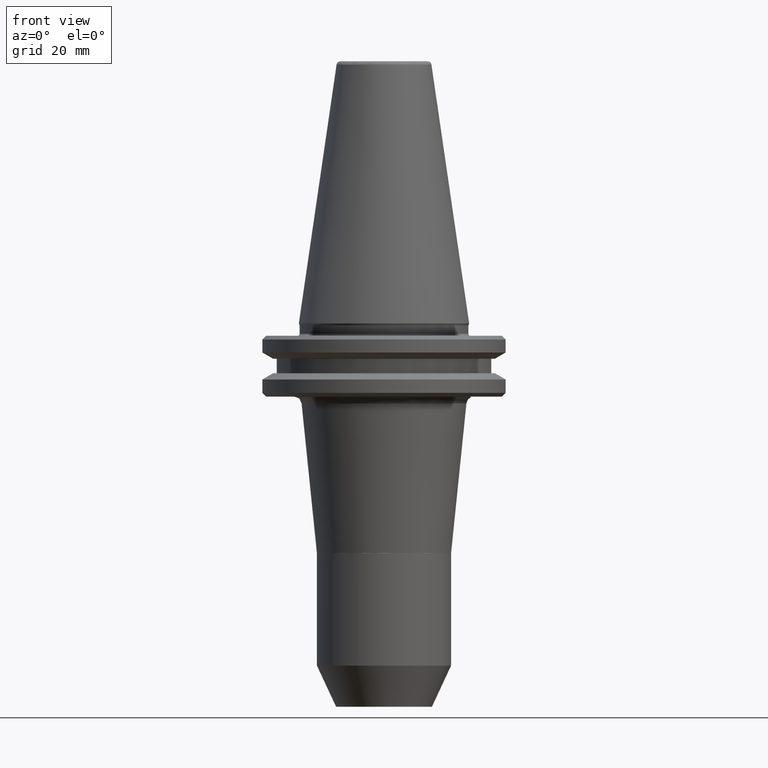
[diagram: clean part render]
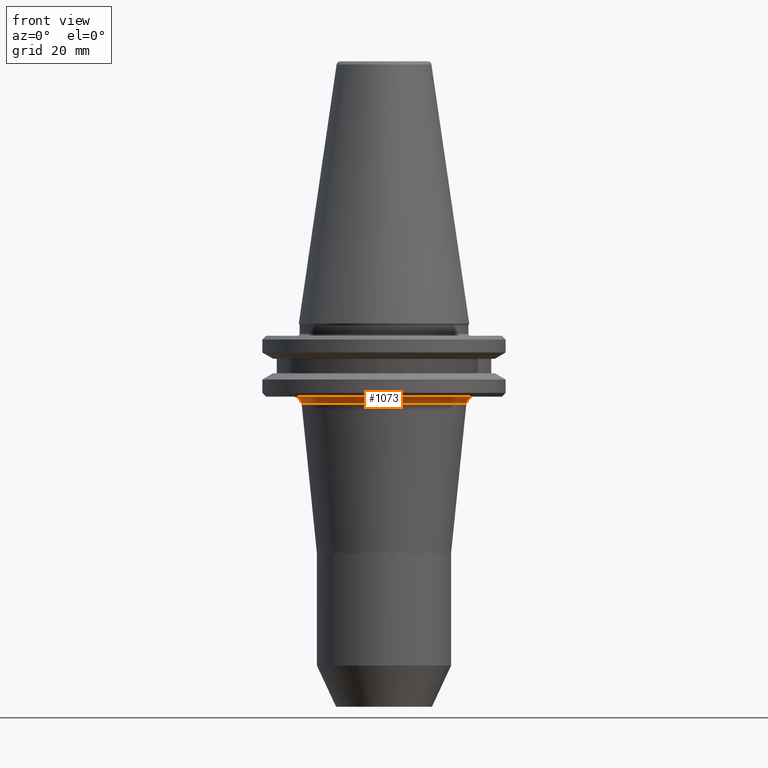
[diagram: same view with one face highlighted and labeled with its STEP entity id]
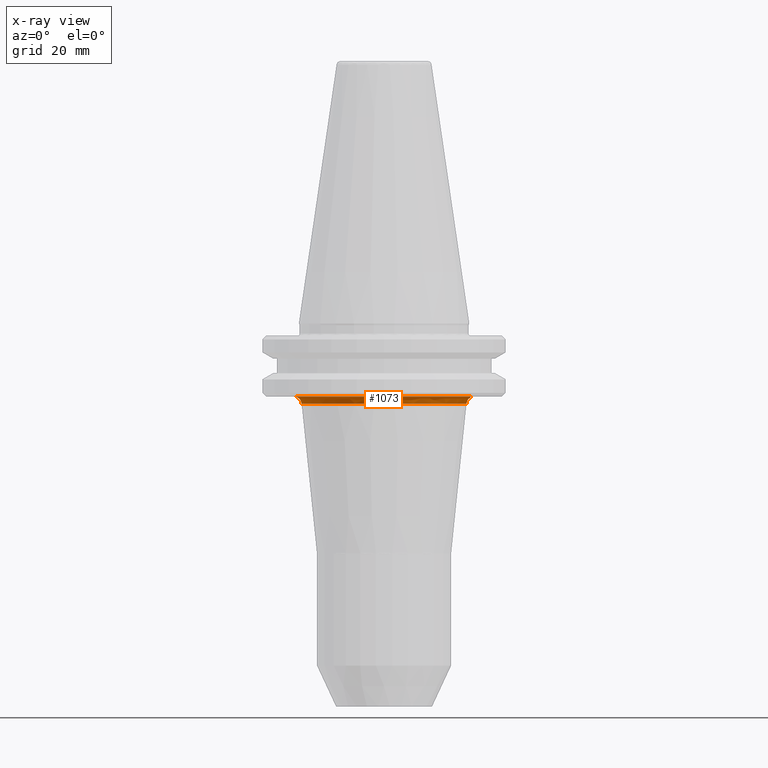
[diagram: x-ray of the same camera — body ghosted, the highlighted face saturated]
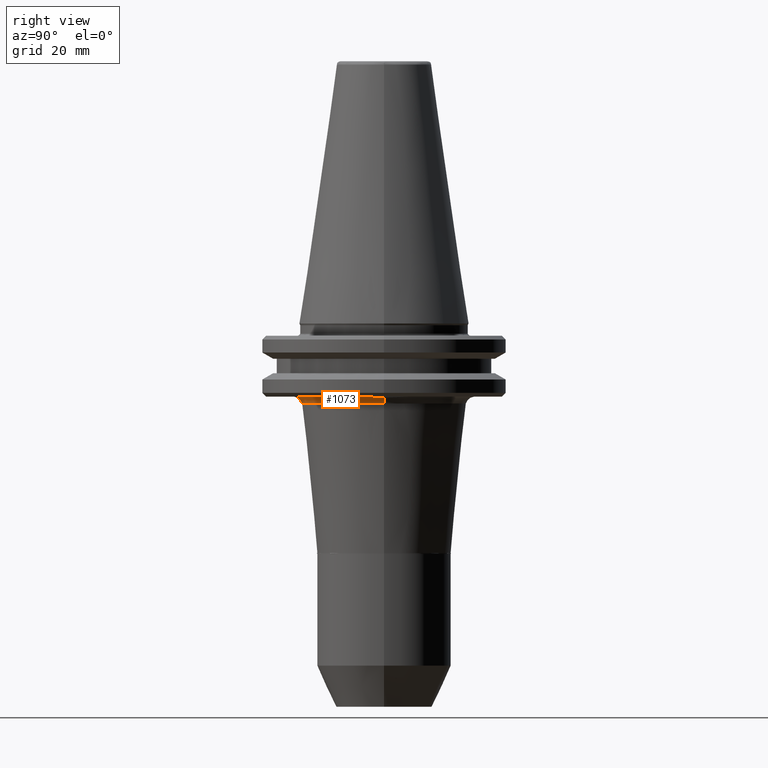
[diagram: same view with one face highlighted and labeled with its STEP entity id]
A machine part, front view. The second image highlights one B-rep face of the part: STEP entity #1073.
The next image is the same camera in x-ray: the body ghosted, the highlighted face saturated — about 0% of this face is hidden behind the body in this view.
A second angle (right view) of the same face is appended — the face is thin or edge-on in the first view.
In plain terms, the highlighted face is a freeform B-spline surface patch.
Its self-contained STEP definition (entity closure, byte-faithful):
#13 = B_SPLINE_CURVE_WITH_KNOTS ( 'NONE', 3,
 ( #38, #1048, #1047, #1046, #1044, #1043, #1042, #1041, #1040, #1038, #1036, #1035, #1034, #1033, #1031, #1027, #1026, #1025, #1022, #1020, #1018, #1016, #1015, #1013, #1012, #1011, #1005, #1004, #1000, #997, #996, #995, #993, #990, #988, #987, #982, #981, #979, #974, #971, #970, #969, #965, #964, #963, #959, #958, #955, #954, #953, #951, #948, #947, #945, #943, #940, #939, #938, #936, #935, #933, #931, #926, #924, #923, #922, #920, #919, #917, #914, #912, #909, #908, #906, #905, #902, #901, #900, #898, #897, #895, #894, #892, #891, #888, #886, #884, #883, #882, #881, #878, #877, #875, #874, #870, #868, #867, #866, #865, #863, #861 ),
 .UNSPECIFIED., .F., .F.,
 ( 4, 1, 1, 1, 1, 2, 2, 1, 1, 1, 1, 2, 2, 1, 1, 1, 2, 2, 2, 1, 1, 1, 2, 2, 1, 1, 1, 1, 2, 2, 1, 1, 1, 1, 2, 2, 2, 1, 1, 1, 1, 2, 2, 1, 1, 1, 1, 2, 2, 1, 1, 1, 2, 2, 2, 1, 1, 1, 2, 2, 1, 1, 1, 1, 2, 2, 1, 1, 1, 1, 2, 2, 4 ),
 ( 0.0000000000000000000, 0.03124999999999959800, 0.04687499999999941000, 0.05468749999999931300, 0.05859374999999927100, 0.06054687499999925100, 0.06249999999999922300, 0.09374999999999884800, 0.1093749999999986300, 0.1171874999999985300, 0.1210937499999985000, 0.1230468749999984600, 0.1249999999999984200, 0.1562499999999982000, 0.1718749999999980800, 0.1796874999999980800, 0.1835937499999980600, 0.1874999999999980300, 0.2499999999999987200, 0.2812499999999990000, 0.2968749999999990600, 0.3046874999999990600, 0.3085937499999991100, 0.3124999999999991700, 0.3437499999999991100, 0.3593749999999991100, 0.3671874999999991100, 0.3710937499999991100, 0.3730468749999991100, 0.3749999999999991700, 0.4062499999999991100, 0.4218749999999991100, 0.4296874999999991100, 0.4335937499999991100, 0.4355468749999991700, 0.4374999999999991700, 0.4999999999999992200, 0.5312499999999992200, 0.5468749999999993300, 0.5546874999999993300, 0.5585937499999992200, 0.5605468749999992200, 0.5624999999999992200, 0.5937499999999992200, 0.6093749999999992200, 0.6171874999999992200, 0.6210937499999993300, 0.6230468749999993300, 0.6249999999999992200, 0.6562499999999993300, 0.6718749999999993300, 0.6796874999999993300, 0.6835937499999993300, 0.6874999999999992200, 0.7499999999999992200, 0.7812499999999991100, 0.7968749999999992200, 0.8046874999999992200, 0.8085937499999991100, 0.8124999999999991100, 0.8437499999999984500, 0.8593749999999982200, 0.8671874999999981100, 0.8710937499999981100, 0.8730468749999981100, 0.8749999999999980000, 0.9062499999999982200, 0.9218749999999982200, 0.9296874999999982200, 0.9335937499999982200, 0.9355468749999981100, 0.9374999999999981100, 1.000000000000000000 ),
 .UNSPECIFIED. ) ;
#18 = DIRECTION ( 'NONE',  ( -1.224646799147353200E-016, -1.000000000000000000, 0.0000000000000000000 ) ) ;
#27 = CIRCLE ( 'NONE', #1374, 21.50000000000000000 ) ;
#38 = CARTESIAN_POINT ( 'NONE',  ( -23.48961763778060400, 2.876648505330322700E-015, -19.10000000000000500 ) ) ;
#74 = CARTESIAN_POINT ( 'NONE',  ( -23.48961763778060400, 2.876648505330322700E-015, -19.10000000000000500 ) ) ;
#83 = CIRCLE ( 'NONE', #370, 2.000000000000001800 ) ;
#111 = DIRECTION ( 'NONE',  ( -0.0000000000000000000, -0.0000000000000000000, -1.000000000000000000 ) ) ;
#173 = CARTESIAN_POINT ( 'NONE',  ( 22.60000000000000100, 0.0000000000000000000, -19.30874891247775000 ) ) ;
#190 = CARTESIAN_POINT ( 'NONE',  ( 23.48961763778060400, 0.0000000000000000000, -21.10000000000000900 ) ) ;
#191 = CARTESIAN_POINT ( 'NONE',  ( -21.60979898546045400, 2.646437115776186900E-015, -19.82309510084861200 ) ) ;
#200 = VERTEX_POINT ( 'NONE', #776 ) ;
#213 = ORIENTED_EDGE ( 'NONE', *, *, #409, .T. ) ;
#258 = VERTEX_POINT ( 'NONE', #173 ) ;
#272 = CARTESIAN_POINT ( 'NONE',  ( 21.50000000000000000, -5.265981236333617700E-015, -20.89647689214163500 ) ) ;
#348 = FACE_OUTER_BOUND ( 'NONE', #398, .T. ) ;
#362 = CARTESIAN_POINT ( 'NONE',  ( -23.48961763778060400, 2.876648505330322700E-015, -21.10000000000000900 ) ) ;
#370 = AXIS2_PLACEMENT_3D ( 'NONE', #362, #18, #1176 ) ;
#389 = DIRECTION ( 'NONE',  ( 1.000000000000000000, 0.0000000000000000000, 0.0000000000000000000 ) ) ;
#398 = EDGE_LOOP ( 'NONE', ( #1528, #1183, #213, #774, #537 ) ) ;
#401 = CARTESIAN_POINT ( 'NONE',  ( 22.60000000000000100, -6.403291088895889200, -19.10000000000006200 ) ) ;
#404 = B_SPLINE_CURVE_WITH_KNOTS ( 'NONE', 3,
 ( #1135, #1137, #1128, #1126, #1125, #1120 ),
 .UNSPECIFIED., .F., .F.,
 ( 4, 2, 4 ),
 ( 0.0000000000000000000, 0.003203409422254073200, 0.006406818844508146500 ),
 .UNSPECIFIED. ) ;
#409 = EDGE_CURVE ( 'NONE', #853, #258, #658, .T. ) ;
#425 = VERTEX_POINT ( 'NONE', #74 ) ;
#537 = ORIENTED_EDGE ( 'NONE', *, *, #1218, .F. ) ;
#567 = EDGE_CURVE ( 'NONE', #853, #200, #27, .T. ) ;
#584 =( BOUNDED_SURFACE ( )  B_SPLINE_SURFACE ( 3, 3, ( 
 ( #1223, #1216, #1197, #272 ),
 ( #191, #1127, #1196, #1195 ),
 ( #1193, #1192, #1190, #1188 ),
 ( #1187, #1185, #1184, #1181 ) ),
 .UNSPECIFIED., .F., .F., .F. ) 
 B_SPLINE_SURFACE_WITH_KNOTS ( ( 4, 4 ),
 ( 4, 4 ),
 ( 0.0000000000000000000, 1.000000000000000000 ),
 ( 0.0000000000000000000, 1.000000000000000000 ),
 .UNSPECIFIED. ) 
 GEOMETRIC_REPRESENTATION_ITEM ( )  RATIONAL_B_SPLINE_SURFACE ( (
 ( 1.000000000000000000, 0.3333333333333334300, 0.3333333333333334300, 1.000000000000000000),
 ( 0.8281422872470154400, 0.2760474290823385400, 0.2760474290823385400, 0.8281422872470154400),
 ( 0.8281422872470154400, 0.2760474290823385400, 0.2760474290823385400, 0.8281422872470154400),
 ( 1.000000000000000000, 0.3333333333333334300, 0.3333333333333334300, 1.000000000000000000) ) ) 
 REPRESENTATION_ITEM ( '' )  SURFACE ( )  );
#658 = CIRCLE ( 'NONE', #831, 2.000000000000001800 ) ;
#668 = EDGE_CURVE ( 'NONE', #200, #425, #83, .T. ) ;
#774 = ORIENTED_EDGE ( 'NONE', *, *, #1122, .T. ) ;
#776 = CARTESIAN_POINT ( 'NONE',  ( -21.50000000000000000, 2.632990618166809200E-015, -20.89647689214163500 ) ) ;
#808 = DIRECTION ( 'NONE',  ( 1.000000000000000000, 0.0000000000000000000, 0.0000000000000000000 ) ) ;
#831 = AXIS2_PLACEMENT_3D ( 'NONE', #190, #1362, #389 ) ;
#853 = VERTEX_POINT ( 'NONE', #1324 ) ;
#861 = CARTESIAN_POINT ( 'NONE',  ( 22.60000000000000100, -6.403291088895889200, -19.10000000000006200 ) ) ;
#863 = CARTESIAN_POINT ( 'NONE',  ( 22.23844916011287200, -7.679361295296256000, -19.09999999999999800 ) ) ;
#865 = CARTESIAN_POINT ( 'NONE',  ( 21.77224074249654300, -8.915783867585053800, -19.10000000000000100 ) ) ;
#866 = CARTESIAN_POINT ( 'NONE',  ( 21.18353518479646200, -10.14995802258036600, -19.10000000000000900 ) ) ;
#867 = CARTESIAN_POINT ( 'NONE',  ( 21.16379654811799700, -10.19105996906064800, -19.09999999999999800 ) ) ;
#868 = CARTESIAN_POINT ( 'NONE',  ( 21.12590786752472000, -10.26937644846092300, -19.10000000000000500 ) ) ;
#870 = CARTESIAN_POINT ( 'NONE',  ( 21.06876436507452900, -10.38666648366328400, -19.10000000000000900 ) ) ;
#874 = CARTESIAN_POINT ( 'NONE',  ( 20.93325615510221000, -10.65905044518241800, -19.10000000000000100 ) ) ;
#875 = CARTESIAN_POINT ( 'NONE',  ( 20.65354625147004700, -11.19864721907524600, -19.10000000000001200 ) ) ;
#877 = CARTESIAN_POINT ( 'NONE',  ( 20.05935250945554300, -12.25715617027905300, -19.10000000000000100 ) ) ;
#878 = CARTESIAN_POINT ( 'NONE',  ( 19.49043112815716200, -13.12899024859922300, -19.10000000000000900 ) ) ;
#881 = CARTESIAN_POINT ( 'NONE',  ( 19.05929482160640000, -13.72979471398595800, -19.10000000000000900 ) ) ;
#882 = CARTESIAN_POINT ( 'NONE',  ( 19.03206440342815100, -13.76752134902931400, -19.10000000000001200 ) ) ;
#883 = CARTESIAN_POINT ( 'NONE',  ( 18.97918167678805200, -13.84033553528916400, -19.10000000000000100 ) ) ;
#884 = CARTESIAN_POINT ( 'NONE',  ( 18.89956623757489900, -13.94930292675507400, -19.10000000000000500 ) ) ;
#886 = CARTESIAN_POINT ( 'NONE',  ( 18.71175743463993900, -14.20178295804162600, -19.10000000000000100 ) ) ;
#888 = CARTESIAN_POINT ( 'NONE',  ( 18.32798204968619500, -14.69963415874589300, -19.10000000000000500 ) ) ;
#891 = CARTESIAN_POINT ( 'NONE',  ( 17.52780016344347300, -15.66690111267899800, -19.10000000000000500 ) ) ;
#892 = CARTESIAN_POINT ( 'NONE',  ( 16.78599091866069800, -16.44724059180669000, -19.10000000000000500 ) ) ;
#894 = CARTESIAN_POINT ( 'NONE',  ( 16.20166445678625400, -17.00812196045926000, -19.10000000000000500 ) ) ;
#895 = CARTESIAN_POINT ( 'NONE',  ( 16.13407094556841800, -17.07226742622473700, -19.10000000000000900 ) ) ;
#897 = CARTESIAN_POINT ( 'NONE',  ( 16.00055967471819300, -17.19747789843038500, -19.09999999999999800 ) ) ;
#898 = CARTESIAN_POINT ( 'NONE',  ( 15.79930017124098500, -17.38403846110652400, -19.10000000000000500 ) ) ;
#900 = CARTESIAN_POINT ( 'NONE',  ( 15.32274648271427300, -17.81056042125786800, -19.10000000000000500 ) ) ;
#901 = CARTESIAN_POINT ( 'NONE',  ( 14.34184638400802700, -18.62846026385526300, -19.10000000000000900 ) ) ;
#902 = CARTESIAN_POINT ( 'NONE',  ( 13.45343020514065000, -19.26927028144395800, -19.10000000000001200 ) ) ;
#905 = CARTESIAN_POINT ( 'NONE',  ( 11.61307162648512100, -20.47056099615210200, -19.10000000000000100 ) ) ;
#906 = CARTESIAN_POINT ( 'NONE',  ( 10.32166076410919900, -21.15120870298842000, -19.10000000000000900 ) ) ;
#908 = CARTESIAN_POINT ( 'NONE',  ( 8.882828095368390500, -21.74547754313000100, -19.10000000000000500 ) ) ;
#909 = CARTESIAN_POINT ( 'NONE',  ( 8.800874475552289400, -21.77877113794940600, -19.10000000000000500 ) ) ;
#912 = CARTESIAN_POINT ( 'NONE',  ( 8.633830778128835700, -21.84554372629682500, -19.10000000000000900 ) ) ;
#914 = CARTESIAN_POINT ( 'NONE',  ( 8.382812370194571400, -21.94422461174937700, -19.10000000000000500 ) ) ;
#917 = CARTESIAN_POINT ( 'NONE',  ( 7.793932719087764300, -22.16413403165881800, -19.10000000000000900 ) ) ;
#919 = CARTESIAN_POINT ( 'NONE',  ( 6.603493286500011500, -22.56256895355817700, -19.10000000000000500 ) ) ;
#920 = CARTESIAN_POINT ( 'NONE',  ( 5.561379263640556100, -22.83314074160991700, -19.10000000000001200 ) ) ;
#922 = CARTESIAN_POINT ( 'NONE',  ( 4.812950296669378700, -22.99129449125934200, -19.10000000000000500 ) ) ;
#923 = CARTESIAN_POINT ( 'NONE',  ( 4.771799317805768900, -22.99986771999664700, -19.10000000000000900 ) ) ;
#924 = CARTESIAN_POINT ( 'NONE',  ( 4.686581034418255200, -23.01738531499732300, -19.10000000000000100 ) ) ;
#926 = CARTESIAN_POINT ( 'NONE',  ( 4.558711538164329700, -23.04330291201765100, -19.09999999999999800 ) ) ;
#931 = CARTESIAN_POINT ( 'NONE',  ( 4.260054882029924000, -23.10126573670021700, -19.10000000000000500 ) ) ;
#933 = CARTESIAN_POINT ( 'NONE',  ( 3.661563576926753200, -23.20714511260579000, -19.10000000000000500 ) ) ;
#935 = CARTESIAN_POINT ( 'NONE',  ( 2.459868995383026400, -23.37871877057880700, -19.10000000000000500 ) ) ;
#936 = CARTESIAN_POINT ( 'NONE',  ( 1.421767403195733000, -23.45689317369032200, -19.10000000000000900 ) ) ;
#938 = CARTESIAN_POINT ( 'NONE',  ( 0.6826309890756546700, -23.47973591897771700, -19.10000000000000500 ) ) ;
#939 = CARTESIAN_POINT ( 'NONE',  ( 0.6432506236463525500, -23.48084404284937700, -19.10000000000000100 ) ) ;
#940 = CARTESIAN_POINT ( 'NONE',  ( 0.5604102215570071500, -23.48296854702307000, -19.10000000000000900 ) ) ;
#943 = CARTESIAN_POINT ( 'NONE',  ( 0.4361681943582441100, -23.48582799268633900, -19.10000000000000500 ) ) ;
#945 = CARTESIAN_POINT ( 'NONE',  ( 0.1464001624412454000, -23.49020885838670500, -19.10000000000000900 ) ) ;
#947 = CARTESIAN_POINT ( 'NONE',  ( -0.4326157752056038500, -23.48980589306484700, -19.10000000000000100 ) ) ;
#948 = CARTESIAN_POINT ( 'NONE',  ( -1.588567145750734700, -23.45234117553087200, -19.10000000000000500 ) ) ;
#951 = CARTESIAN_POINT ( 'NONE',  ( -2.575816026649015100, -23.35738492583269000, -19.10000000000000500 ) ) ;
#953 = CARTESIAN_POINT ( 'NONE',  ( -4.545558349020268500, -23.08368091354422100, -19.10000000000000900 ) ) ;
#954 = CARTESIAN_POINT ( 'NONE',  ( -5.835063688993908900, -22.79195538834501600, -19.10000000000000900 ) ) ;
#955 = CARTESIAN_POINT ( 'NONE',  ( -7.138333864131088700, -22.37873991038258100, -19.10000000000000500 ) ) ;
#958 = CARTESIAN_POINT ( 'NONE',  ( -7.181766295459447700, -22.36484340433722200, -19.10000000000000500 ) ) ;
#959 = CARTESIAN_POINT ( 'NONE',  ( -7.264551560723817600, -22.33809227505639700, -19.10000000000000500 ) ) ;
#963 = CARTESIAN_POINT ( 'NONE',  ( -7.388589256946167100, -22.29763263905008900, -19.10000000000000500 ) ) ;
#964 = CARTESIAN_POINT ( 'NONE',  ( -7.677029136412208700, -22.20089622710650100, -19.10000000000000900 ) ) ;
#965 = CARTESIAN_POINT ( 'NONE',  ( -8.249983248466533000, -21.99810102483709800, -19.10000000000000500 ) ) ;
#969 = CARTESIAN_POINT ( 'NONE',  ( -9.380188885064159300, -21.55522110676950800, -19.10000000000000900 ) ) ;
#970 = CARTESIAN_POINT ( 'NONE',  ( -10.32201785212890700, -21.11168486809075500, -19.10000000000000100 ) ) ;
#971 = CARTESIAN_POINT ( 'NONE',  ( -10.97643508533846200, -20.76732661664618000, -19.10000000000000500 ) ) ;
#974 = CARTESIAN_POINT ( 'NONE',  ( -11.01754997664923900, -20.74554680080168700, -19.10000000000000500 ) ) ;
#977 = CARTESIAN_POINT ( 'NONE',  ( 0.0000000000000000000, 0.0000000000000000000, -20.89647689214163500 ) ) ;
#979 = CARTESIAN_POINT ( 'NONE',  ( -11.09694861920547000, -20.70318710229494700, -19.10000000000000500 ) ) ;
#981 = CARTESIAN_POINT ( 'NONE',  ( -11.21583520292001500, -20.63932403960466300, -19.10000000000000900 ) ) ;
#982 = CARTESIAN_POINT ( 'NONE',  ( -11.49175757074860500, -20.48804562214923700, -19.10000000000000500 ) ) ;
#987 = CARTESIAN_POINT ( 'NONE',  ( -12.03768366305111000, -20.17643036919283300, -19.10000000000000500 ) ) ;
#988 = CARTESIAN_POINT ( 'NONE',  ( -13.10586127423742300, -19.51696619109769100, -19.10000000000000900 ) ) ;
#990 = CARTESIAN_POINT ( 'NONE',  ( -13.98085710082217600, -18.88959631470358900, -19.10000000000000500 ) ) ;
#993 = CARTESIAN_POINT ( 'NONE',  ( -14.61681147925899500, -18.38801147410887500, -19.10000000000000500 ) ) ;
#995 = CARTESIAN_POINT ( 'NONE',  ( -14.68964821591323000, -18.32988804226319200, -19.10000000000000500 ) ) ;
#996 = CARTESIAN_POINT ( 'NONE',  ( -14.83203993620927700, -18.21487708720379900, -19.10000000000000500 ) ) ;
#997 = CARTESIAN_POINT ( 'NONE',  ( -15.04452090269105500, -18.04120478035596500, -19.10000000000000500 ) ) ;
#1000 = CARTESIAN_POINT ( 'NONE',  ( -15.53256352674590500, -17.62787827789982100, -19.10000000000001200 ) ) ;
#1004 = CARTESIAN_POINT ( 'NONE',  ( -16.47766358391164900, -16.76886079374269700, -19.10000000000000500 ) ) ;
#1005 = CARTESIAN_POINT ( 'NONE',  ( -17.23463187700697600, -15.97707812861689000, -19.10000000000000500 ) ) ;
#1011 = CARTESIAN_POINT ( 'NONE',  ( -18.67774516961147700, -14.31953684580569000, -19.10000000000000500 ) ) ;
#1012 = CARTESIAN_POINT ( 'NONE',  ( -19.52962809362745500, -13.13407541669429100, -19.10000000000000500 ) ) ;
#1013 = CARTESIAN_POINT ( 'NONE',  ( -20.31624056757210200, -11.79070811067646200, -19.10000000000000500 ) ) ;
#1015 = CARTESIAN_POINT ( 'NONE',  ( -20.36049502986806600, -11.71411567094663500, -19.09999999999999800 ) ) ;
#1016 = CARTESIAN_POINT ( 'NONE',  ( -20.44961919607780100, -11.55784968488108100, -19.10000000000000100 ) ) ;
#1018 = CARTESIAN_POINT ( 'NONE',  ( -20.58190382730943600, -11.32279876568336100, -19.10000000000000100 ) ) ;
#1020 = CARTESIAN_POINT ( 'NONE',  ( -20.88075664026916900, -10.76978304019303000, -19.10000000000000900 ) ) ;
#1022 = CARTESIAN_POINT ( 'NONE',  ( -21.43921695986550100, -9.645497266429641700, -19.10000000000000500 ) ) ;
#1025 = CARTESIAN_POINT ( 'NONE',  ( -21.85061956582271800, -8.650530621290663200, -19.09999999999999800 ) ) ;
#1026 = CARTESIAN_POINT ( 'NONE',  ( -22.11025973516182200, -7.930985272064556400, -19.10000000000000100 ) ) ;
#1027 = CARTESIAN_POINT ( 'NONE',  ( -22.12441417247558200, -7.891405539668985700, -19.10000000000000900 ) ) ;
#1031 = CARTESIAN_POINT ( 'NONE',  ( -22.15349196822743100, -7.809408565628206000, -19.10000000000000500 ) ) ;
#1033 = CARTESIAN_POINT ( 'NONE',  ( -22.19675906915575700, -7.686322059935128500, -19.10000000000000500 ) ) ;
#1034 = CARTESIAN_POINT ( 'NONE',  ( -22.29526848909212700, -7.398482900894599400, -19.10000000000000900 ) ) ;
#1035 = CARTESIAN_POINT ( 'NONE',  ( -22.48249873337939400, -6.820255333120133700, -19.10000000000000500 ) ) ;
#1036 = CARTESIAN_POINT ( 'NONE',  ( -22.81780483961208000, -5.653603198797596500, -19.10000000000000100 ) ) ;
#1038 = CARTESIAN_POINT ( 'NONE',  ( -23.03808827522547300, -4.636135085766381900, -19.09999999999999800 ) ) ;
#1040 = CARTESIAN_POINT ( 'NONE',  ( -23.16242597069870300, -3.907173792409679400, -19.10000000000000900 ) ) ;
#1041 = CARTESIAN_POINT ( 'NONE',  ( -23.16894083543638400, -3.868331306558644200, -19.10000000000000500 ) ) ;
#1042 = CARTESIAN_POINT ( 'NONE',  ( -23.18244301658772200, -3.786581590961328700, -19.10000000000000500 ) ) ;
#1043 = CARTESIAN_POINT ( 'NONE',  ( -23.20236962264171200, -3.663929863898875500, -19.10000000000000500 ) ) ;
#1044 = CARTESIAN_POINT ( 'NONE',  ( -23.24657837705656900, -3.377552425087812600, -19.10000000000000900 ) ) ;
#1046 = CARTESIAN_POINT ( 'NONE',  ( -23.32584924704182300, -2.804037244804316500, -19.10000000000000500 ) ) ;
#1047 = CARTESIAN_POINT ( 'NONE',  ( -23.44780443163454100, -1.653965673591860900, -19.10000000000001200 ) ) ;
#1048 = CARTESIAN_POINT ( 'NONE',  ( -23.48961763778061100, -0.6629765371603840700, -19.10000000000000900 ) ) ;
#1073 = ADVANCED_FACE ( 'NONE', ( #348 ), #584, .F. ) ;
#1120 = CARTESIAN_POINT ( 'NONE',  ( 22.60000000000000100, -6.403291088895889200, -19.10000000000006200 ) ) ;
#1122 = EDGE_CURVE ( 'NONE', #258, #1553, #404, .T. ) ;
#1125 = CARTESIAN_POINT ( 'NONE',  ( 22.60000000000000500, -5.335037281118868400, -19.10000000000000500 ) ) ;
#1126 = CARTESIAN_POINT ( 'NONE',  ( 22.59999999999999800, -4.268649699922003800, -19.16075389601362000 ) ) ;
#1127 = CARTESIAN_POINT ( 'NONE',  ( -21.60979898546046500, -43.21959797092090100, -19.82309510084861200 ) ) ;
#1128 = CARTESIAN_POINT ( 'NONE',  ( 22.60000000000000500, -2.135381135574615300, -19.26606561895427900 ) ) ;
#1135 = CARTESIAN_POINT ( 'NONE',  ( 22.60000000000000100, 0.0000000000000000000, -19.30874891247775000 ) ) ;
#1137 = CARTESIAN_POINT ( 'NONE',  ( 22.59999999999999400, -1.068410460483160400, -19.30874891247775000 ) ) ;
#1176 = DIRECTION ( 'NONE',  ( -1.000000000000000000, 1.224646799147353500E-016, 0.0000000000000000000 ) ) ;
#1181 = CARTESIAN_POINT ( 'NONE',  ( 23.48961763778060400, -5.753297010660645300E-015, -19.10000000000000500 ) ) ;
#1183 = ORIENTED_EDGE ( 'NONE', *, *, #567, .F. ) ;
#1184 = CARTESIAN_POINT ( 'NONE',  ( 23.48961763778059400, -46.97923527556120900, -19.10000000000000900 ) ) ;
#1185 = CARTESIAN_POINT ( 'NONE',  ( -23.48961763778061500, -46.97923527556119400, -19.10000000000000900 ) ) ;
#1187 = CARTESIAN_POINT ( 'NONE',  ( -23.48961763778060400, 2.876648505330322700E-015, -19.10000000000000500 ) ) ;
#1188 = CARTESIAN_POINT ( 'NONE',  ( 22.41063465038573100, -5.489022398291129800E-015, -19.10000000000000500 ) ) ;
#1190 = CARTESIAN_POINT ( 'NONE',  ( 22.41063465038572000, -44.82126930077146200, -19.10000000000000500 ) ) ;
#1192 = CARTESIAN_POINT ( 'NONE',  ( -22.41063465038573800, -44.82126930077145500, -19.10000000000000500 ) ) ;
#1193 = CARTESIAN_POINT ( 'NONE',  ( -22.41063465038573100, 2.744511199145564900E-015, -19.10000000000000500 ) ) ;
#1195 = CARTESIAN_POINT ( 'NONE',  ( 21.60979898546045400, -5.292874231552373700E-015, -19.82309510084861200 ) ) ;
#1196 = CARTESIAN_POINT ( 'NONE',  ( 21.60979898546044400, -43.21959797092090100, -19.82309510084861200 ) ) ;
#1197 = CARTESIAN_POINT ( 'NONE',  ( 21.49999999999998900, -43.00000000000000000, -20.89647689214163500 ) ) ;
#1216 = CARTESIAN_POINT ( 'NONE',  ( -21.50000000000000700, -42.99999999999999300, -20.89647689214163500 ) ) ;
#1218 = EDGE_CURVE ( 'NONE', #425, #1553, #13, .T. ) ;
#1223 = CARTESIAN_POINT ( 'NONE',  ( -21.50000000000000000, 2.632990618166808800E-015, -20.89647689214163500 ) ) ;
#1324 = CARTESIAN_POINT ( 'NONE',  ( 21.50000000000000000, 0.0000000000000000000, -20.89647689214163500 ) ) ;
#1362 = DIRECTION ( 'NONE',  ( 0.0000000000000000000, 1.000000000000000000, 0.0000000000000000000 ) ) ;
#1374 = AXIS2_PLACEMENT_3D ( 'NONE', #977, #111, #808 ) ;
#1528 = ORIENTED_EDGE ( 'NONE', *, *, #668, .F. ) ;
#1553 = VERTEX_POINT ( 'NONE', #401 ) ;